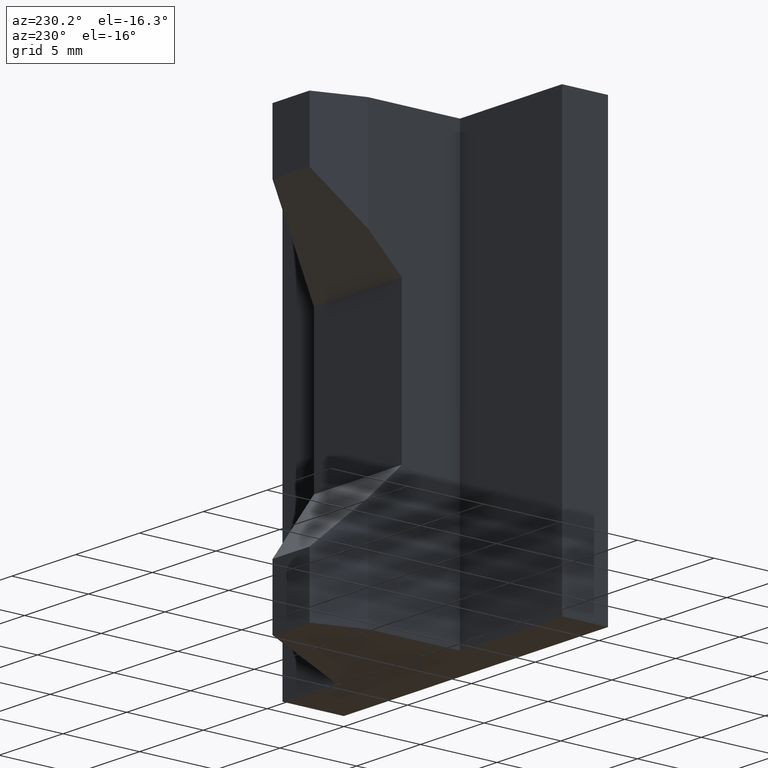
[diagram: clean part render]
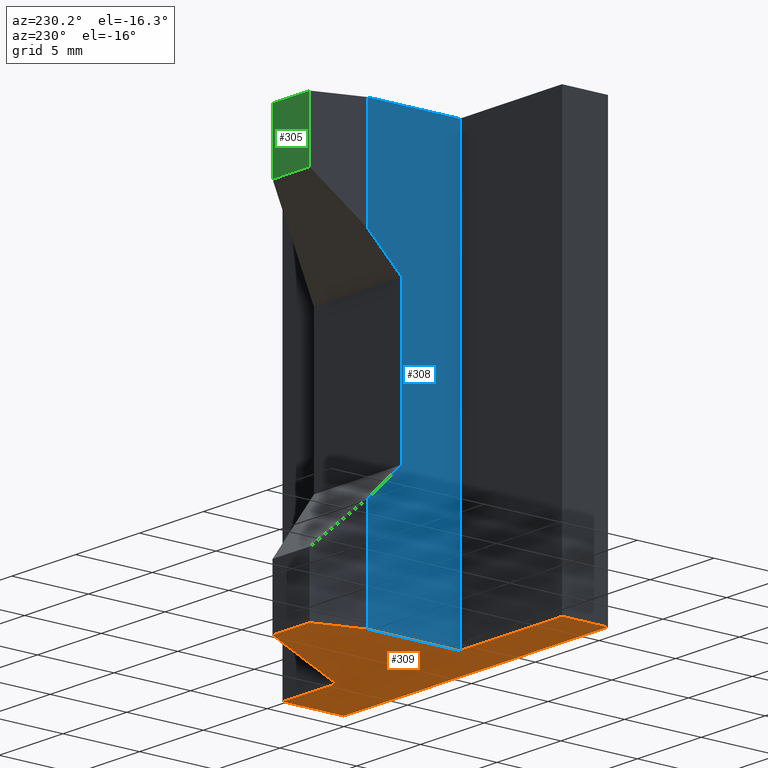
[diagram: same view with three faces highlighted in distinct colors, each labeled with its STEP entity id]
A machine part, auxiliary view with three faces highlighted in distinct colors.
Their STEP definitions:

[orange] entity #309 — the highlighted planar face has unit normal (0, 0, 1).
#23=FACE_OUTER_BOUND('',#39,.T.);
#39=EDGE_LOOP('',(#239,#240,#241,#242,#243,#244,#245,#246,#247));
#60=LINE('',#462,#102);
#65=LINE('',#472,#107);
#69=LINE('',#480,#111);
#72=LINE('',#487,#114);
#73=LINE('',#489,#115);
#74=LINE('',#491,#116);
#75=LINE('',#492,#117);
#76=LINE('',#494,#118);
#77=LINE('',#495,#119);
#102=VECTOR('',#379,10.);
#107=VECTOR('',#388,10.);
#111=VECTOR('',#396,10.);
#114=VECTOR('',#401,10.);
#115=VECTOR('',#402,10.);
#116=VECTOR('',#403,10.);
#117=VECTOR('',#404,10.);
#118=VECTOR('',#405,10.);
#119=VECTOR('',#406,10.);
#141=VERTEX_POINT('',#459);
#142=VERTEX_POINT('',#461);
#145=VERTEX_POINT('',#471);
#147=VERTEX_POINT('',#479);
#149=VERTEX_POINT('',#485);
#150=VERTEX_POINT('',#486);
#151=VERTEX_POINT('',#488);
#152=VERTEX_POINT('',#490);
#153=VERTEX_POINT('',#493);
#172=EDGE_CURVE('',#141,#142,#60,.T.);
#177=EDGE_CURVE('',#142,#145,#65,.T.);
#181=EDGE_CURVE('',#145,#147,#69,.T.);
#184=EDGE_CURVE('',#149,#150,#72,.T.);
#185=EDGE_CURVE('',#151,#149,#73,.T.);
#186=EDGE_CURVE('',#152,#151,#74,.T.);
#187=EDGE_CURVE('',#147,#152,#75,.T.);
#188=EDGE_CURVE('',#153,#141,#76,.T.);
#189=EDGE_CURVE('',#150,#153,#77,.T.);
#239=ORIENTED_EDGE('',*,*,#184,.F.);
#240=ORIENTED_EDGE('',*,*,#185,.F.);
#241=ORIENTED_EDGE('',*,*,#186,.F.);
#242=ORIENTED_EDGE('',*,*,#187,.F.);
#243=ORIENTED_EDGE('',*,*,#181,.F.);
#244=ORIENTED_EDGE('',*,*,#177,.F.);
#245=ORIENTED_EDGE('',*,*,#172,.F.);
#246=ORIENTED_EDGE('',*,*,#188,.F.);
#247=ORIENTED_EDGE('',*,*,#189,.F.);
#293=PLANE('',#348);
#309=ADVANCED_FACE('',(#23),#293,.F.);
#348=AXIS2_PLACEMENT_3D('',#484,#399,#400);
#379=DIRECTION('',(-1.,-7.63974827717709E-16,0.));
#388=DIRECTION('',(-0.309016994374947,-0.951056516295154,0.));
#396=DIRECTION('',(7.40148683083437E-16,-1.,0.));
#399=DIRECTION('center_axis',(0.,0.,1.));
#400=DIRECTION('ref_axis',(1.,0.,0.));
#401=DIRECTION('',(-5.55111512312579E-16,1.,0.));
#402=DIRECTION('',(1.,1.22464679914735E-16,0.));
#403=DIRECTION('',(0.,-1.,0.));
#404=DIRECTION('',(-1.,-2.77555756156289E-16,0.));
#405=DIRECTION('',(-0.5,0.866025403784438,0.));
#406=DIRECTION('',(-1.,-5.28677630773884E-16,0.));
#459=CARTESIAN_POINT('',(-8.81880215351701,12.,-13.9));
#461=CARTESIAN_POINT('',(-11.7252409113013,12.,-13.9));
#462=CARTESIAN_POINT('',(-11.7252409113013,12.,-13.9));
#471=CARTESIAN_POINT('',(-12.7,9.,-13.9));
#472=CARTESIAN_POINT('',(-12.7,9.,-13.9));
#479=CARTESIAN_POINT('',(-12.7,3.,-13.9));
#480=CARTESIAN_POINT('',(-12.7,3.,-13.9));
#484=CARTESIAN_POINT('Origin',(-10.1877548623983,3.77786097788378,-13.9));
#485=CARTESIAN_POINT('',(1.11022302462516E-15,3.18042584056346E-16,-13.9));
#486=CARTESIAN_POINT('',(-1.11022302462516E-15,4.,-13.9));
#487=CARTESIAN_POINT('',(-1.11022302462516E-15,4.,-13.9));
#488=CARTESIAN_POINT('',(-20.7,-2.21697629017867E-15,-13.9));
#489=CARTESIAN_POINT('',(1.11022302462516E-15,3.18042584056346E-16,-13.9));
#490=CARTESIAN_POINT('',(-20.7,3.,-13.9));
#491=CARTESIAN_POINT('',(-20.7,-2.21697629017867E-15,-13.9));
#492=CARTESIAN_POINT('',(-20.7,3.,-13.9));
#493=CARTESIAN_POINT('',(-4.2,3.99999999999999,-13.9));
#494=CARTESIAN_POINT('',(-8.81880215351701,12.,-13.9));
#495=CARTESIAN_POINT('',(-4.2,3.99999999999999,-13.9));

[blue] entity #308 — the highlighted planar face has unit normal (-1, -0, 0).
#22=FACE_OUTER_BOUND('',#38,.T.);
#38=EDGE_LOOP('',(#231,#232,#233,#234,#235,#236,#237,#238));
#49=LINE('',#440,#91);
#55=LINE('',#453,#97);
#58=LINE('',#457,#100);
#66=LINE('',#473,#108);
#67=LINE('',#476,#109);
#69=LINE('',#480,#111);
#70=LINE('',#482,#112);
#71=LINE('',#483,#113);
#91=VECTOR('',#362,10.);
#97=VECTOR('',#370,10.);
#100=VECTOR('',#375,10.);
#108=VECTOR('',#389,10.);
#109=VECTOR('',#392,10.);
#111=VECTOR('',#396,10.);
#112=VECTOR('',#397,10.);
#113=VECTOR('',#398,10.);
#133=VERTEX_POINT('',#437);
#134=VERTEX_POINT('',#439);
#139=VERTEX_POINT('',#450);
#140=VERTEX_POINT('',#452);
#145=VERTEX_POINT('',#471);
#146=VERTEX_POINT('',#475);
#147=VERTEX_POINT('',#479);
#148=VERTEX_POINT('',#481);
#161=EDGE_CURVE('',#134,#133,#49,.T.);
#167=EDGE_CURVE('',#140,#139,#55,.T.);
#170=EDGE_CURVE('',#133,#140,#58,.T.);
#178=EDGE_CURVE('',#139,#145,#66,.T.);
#179=EDGE_CURVE('',#146,#134,#67,.T.);
#181=EDGE_CURVE('',#145,#147,#69,.T.);
#182=EDGE_CURVE('',#148,#147,#70,.T.);
#183=EDGE_CURVE('',#148,#146,#71,.T.);
#231=ORIENTED_EDGE('',*,*,#161,.T.);
#232=ORIENTED_EDGE('',*,*,#170,.T.);
#233=ORIENTED_EDGE('',*,*,#167,.T.);
#234=ORIENTED_EDGE('',*,*,#178,.T.);
#235=ORIENTED_EDGE('',*,*,#181,.T.);
#236=ORIENTED_EDGE('',*,*,#182,.F.);
#237=ORIENTED_EDGE('',*,*,#183,.T.);
#238=ORIENTED_EDGE('',*,*,#179,.T.);
#292=PLANE('',#347);
#308=ADVANCED_FACE('',(#22),#292,.T.);
#347=AXIS2_PLACEMENT_3D('',#478,#394,#395);
#362=DIRECTION('',(5.32418405910155E-16,-0.719339800338651,-0.694658370458997));
#370=DIRECTION('',(-5.32418405910155E-16,0.719339800338651,-0.694658370458997));
#375=DIRECTION('',(0.,0.,-1.));
#389=DIRECTION('',(0.,0.,-1.));
#392=DIRECTION('',(0.,0.,-1.));
#394=DIRECTION('center_axis',(-1.,-7.40148683083437E-16,0.));
#395=DIRECTION('ref_axis',(0.,0.,1.));
#396=DIRECTION('',(7.40148683083437E-16,-1.,0.));
#397=DIRECTION('',(0.,0.,-1.));
#398=DIRECTION('',(-7.40148683083437E-16,1.,0.));
#437=CARTESIAN_POINT('',(-12.7,6.79999999999999,4.9));
#439=CARTESIAN_POINT('',(-12.7,9.,7.02451530457557));
#440=CARTESIAN_POINT('',(-12.7,4.59259171503423,2.76833059779242));
#450=CARTESIAN_POINT('',(-12.7,9.,-7.02451530457557));
#452=CARTESIAN_POINT('',(-12.7,6.79999999999999,-4.9));
#453=CARTESIAN_POINT('',(-12.7,7.19259171503423,-5.27912141229082));
#457=CARTESIAN_POINT('',(-12.7,6.79999999999999,-2.45));
#471=CARTESIAN_POINT('',(-12.7,9.,-13.9));
#473=CARTESIAN_POINT('',(-12.7,9.,0.));
#475=CARTESIAN_POINT('',(-12.7,9.,13.9));
#476=CARTESIAN_POINT('',(-12.7,9.,0.));
#478=CARTESIAN_POINT('Origin',(-12.7,3.,0.));
#479=CARTESIAN_POINT('',(-12.7,3.,-13.9));
#480=CARTESIAN_POINT('',(-12.7,3.,-13.9));
#481=CARTESIAN_POINT('',(-12.7,3.,13.9));
#482=CARTESIAN_POINT('',(-12.7,3.,0.));
#483=CARTESIAN_POINT('',(-12.7,3.,13.9));

[green] entity #305 — the highlighted planar face has unit normal (-0, 1, 0).
#19=FACE_OUTER_BOUND('',#35,.T.);
#35=EDGE_LOOP('',(#219,#220,#221,#222));
#51=LINE('',#443,#93);
#62=LINE('',#466,#104);
#63=LINE('',#468,#105);
#64=LINE('',#469,#106);
#93=VECTOR('',#364,10.);
#104=VECTOR('',#383,10.);
#105=VECTOR('',#384,10.);
#106=VECTOR('',#385,10.);
#132=VERTEX_POINT('',#435);
#135=VERTEX_POINT('',#441);
#143=VERTEX_POINT('',#465);
#144=VERTEX_POINT('',#467);
#163=EDGE_CURVE('',#132,#135,#51,.T.);
#174=EDGE_CURVE('',#143,#135,#62,.T.);
#175=EDGE_CURVE('',#143,#144,#63,.T.);
#176=EDGE_CURVE('',#144,#132,#64,.T.);
#219=ORIENTED_EDGE('',*,*,#163,.T.);
#220=ORIENTED_EDGE('',*,*,#174,.F.);
#221=ORIENTED_EDGE('',*,*,#175,.T.);
#222=ORIENTED_EDGE('',*,*,#176,.T.);
#289=PLANE('',#344);
#305=ADVANCED_FACE('',(#19),#289,.T.);
#344=AXIS2_PLACEMENT_3D('',#464,#381,#382);
#364=DIRECTION('',(-1.,-7.63974827717709E-16,-6.24044902201945E-17));
#381=DIRECTION('center_axis',(-7.63974827717709E-16,1.,0.));
#382=DIRECTION('ref_axis',(0.,0.,1.));
#383=DIRECTION('',(0.,0.,-1.));
#384=DIRECTION('',(1.,7.63974827717709E-16,0.));
#385=DIRECTION('',(0.,0.,-1.));
#435=CARTESIAN_POINT('',(-8.81880215351701,12.,9.92158162899679));
#441=CARTESIAN_POINT('',(-11.7252409113013,12.,9.92158162899679));
#443=CARTESIAN_POINT('',(-12.2126204556506,12.,9.9215816289968));
#464=CARTESIAN_POINT('Origin',(-11.7252409113013,12.,0.));
#465=CARTESIAN_POINT('',(-11.7252409113013,12.,13.9));
#466=CARTESIAN_POINT('',(-11.7252409113013,12.,0.));
#467=CARTESIAN_POINT('',(-8.81880215351701,12.,13.9));
#468=CARTESIAN_POINT('',(-11.7252409113013,12.,13.9));
#469=CARTESIAN_POINT('',(-8.81880215351701,12.,0.));